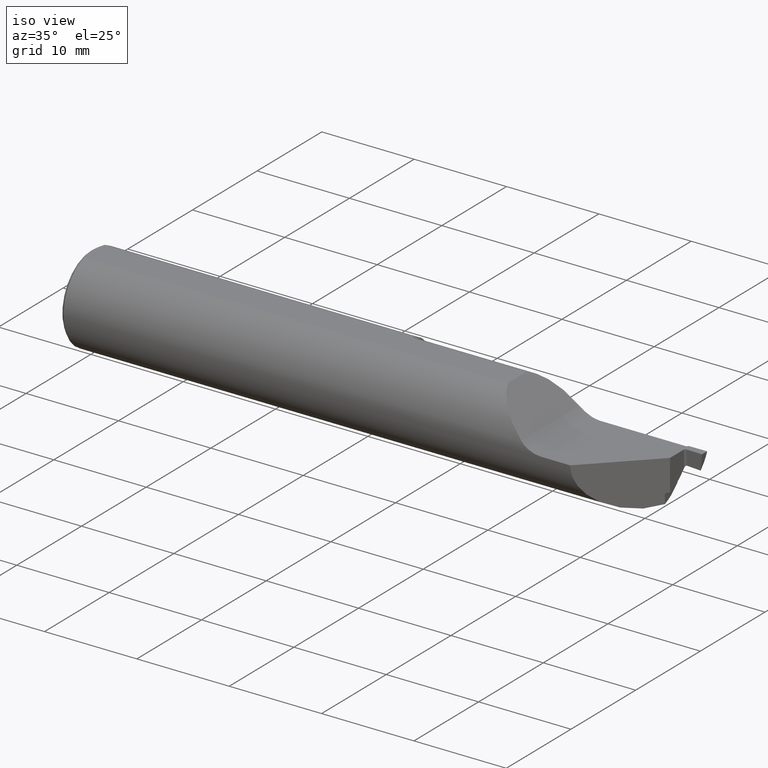
[diagram: clean part render]
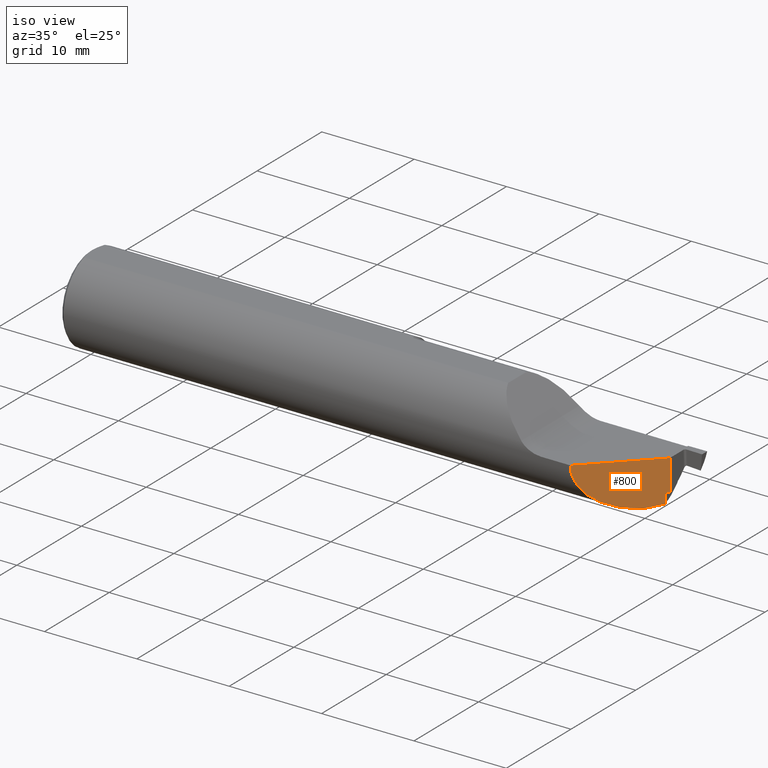
[diagram: same view with one face highlighted and labeled with its STEP entity id]
A machine part, iso view. The second image highlights one B-rep face of the part: STEP entity #800.
In plain terms, the highlighted planar face has unit normal (-0.7071, 0.7071, 0).
Its self-contained STEP definition (entity closure, byte-faithful):
#27 = EDGE_CURVE ( 'NONE', #167, #770, #256, .T. ) ;
#43 = VERTEX_POINT ( 'NONE', #600 ) ;
#73 = CARTESIAN_POINT ( 'NONE',  ( 2.425000000000000266, 0.06265000000000001124, 0.000000000000000000 ) ) ;
#81 = CARTESIAN_POINT ( 'NONE',  ( 2.376537322261709662, 0.01418732226170915482, -0.1864309973068664084 ) ) ;
#94 = ORIENTED_EDGE ( 'NONE', *, *, #509, .F. ) ;
#97 = DIRECTION ( 'NONE',  ( -0.7071067811865483499, -0.7071067811865465735, 0.000000000000000000 ) ) ;
#109 = CARTESIAN_POINT ( 'NONE',  ( 2.425000000000000266, 0.06265000000000001124, 0.000000000000000000 ) ) ;
#117 = PLANE ( 'NONE',  #733 ) ;
#131 = CARTESIAN_POINT ( 'NONE',  ( 2.425000000000000266, 0.06265000000000001124, -0.1873499999999999888 ) ) ;
#142 = VERTEX_POINT ( 'NONE', #411 ) ;
#159 = CARTESIAN_POINT ( 'NONE',  ( 2.416116090373312097, 0.05376609037331224472, -0.1342873896218227669 ) ) ;
#167 = VERTEX_POINT ( 'NONE', #677 ) ;
#194 =( BOUNDED_CURVE ( )  B_SPLINE_CURVE ( 3, ( #377, #381, #792, #739 ),
 .UNSPECIFIED., .F., .T. ) 
 B_SPLINE_CURVE_WITH_KNOTS ( ( 4, 4 ),
 ( 4.736077221231925094, 6.283185307179586232 ),
 .UNSPECIFIED. ) 
 CURVE ( )  GEOMETRIC_REPRESENTATION_ITEM ( )  RATIONAL_B_SPLINE_CURVE ( ( 1.000000000000000000, 0.8102880308174518209, 0.8102880308174518209, 1.000000000000000000 ) ) 
 REPRESENTATION_ITEM ( '' )  );
#204 = CARTESIAN_POINT ( 'NONE',  ( 2.357912423116064193, -0.004437576883935920487, -0.1872974383471407711 ) ) ;
#211 = VECTOR ( 'NONE', #690, 39.37007874015748143 ) ;
#244 = EDGE_CURVE ( 'NONE', #435, #289, #569, .T. ) ;
#256 =( BOUNDED_CURVE ( )  B_SPLINE_CURVE ( 3, ( #762, #825, #895, #548 ),
 .UNSPECIFIED., .F., .F. ) 
 B_SPLINE_CURVE_WITH_KNOTS ( ( 4, 4 ),
 ( 1.833971977229343020, 1.879038394447086535 ),
 .UNSPECIFIED. ) 
 CURVE ( )  GEOMETRIC_REPRESENTATION_ITEM ( )  RATIONAL_B_SPLINE_CURVE ( ( 1.000000000000000000, 0.9998307586644052947, 0.9998307586644052947, 1.000000000000000000 ) ) 
 REPRESENTATION_ITEM ( '' )  );
#288 = CARTESIAN_POINT ( 'NONE',  ( 2.413159311148727060, 0.05080931114872633964, -0.1371118278191037765 ) ) ;
#289 = VERTEX_POINT ( 'NONE', #622 ) ;
#298 = ORIENTED_EDGE ( 'NONE', *, *, #830, .F. ) ;
#308 = EDGE_CURVE ( 'NONE', #770, #402, #354, .T. ) ;
#341 = CARTESIAN_POINT ( 'NONE',  ( 2.415004202274817047, 0.05265420227481731191, -0.1349895646537199456 ) ) ;
#354 = LINE ( 'NONE', #131, #581 ) ;
#362 = LINE ( 'NONE', #561, #211 ) ;
#370 = EDGE_CURVE ( 'NONE', #43, #167, #616, .T. ) ;
#377 = CARTESIAN_POINT ( 'NONE',  ( 2.357912423116064193, -0.004437576883935920487, -0.1872974383471407711 ) ) ;
#381 = CARTESIAN_POINT ( 'NONE',  ( 2.250245845164273728, -0.1121041548357255835, -0.1847465293667054365 ) ) ;
#387 = ORIENTED_EDGE ( 'NONE', *, *, #27, .T. ) ;
#393 = CARTESIAN_POINT ( 'NONE',  ( 2.425000000000000266, 0.06265000000000001124, -0.1873499999999999888 ) ) ;
#395 = ORIENTED_EDGE ( 'NONE', *, *, #308, .T. ) ;
#402 = VERTEX_POINT ( 'NONE', #73 ) ;
#411 = CARTESIAN_POINT ( 'NONE',  ( 2.174999999999999822, -0.1873499999999999888, 0.000000000000000000 ) ) ;
#421 = CARTESIAN_POINT ( 'NONE',  ( 2.412383164751053855, 0.05003316475105366867, -0.1386217677844878426 ) ) ;
#423 = CARTESIAN_POINT ( 'NONE',  ( 2.394828643948621494, 0.03247864394862154391, -0.1828164241359915843 ) ) ;
#435 = VERTEX_POINT ( 'NONE', #487 ) ;
#452 = VECTOR ( 'NONE', #97, 39.37007874015748854 ) ;
#454 = FACE_OUTER_BOUND ( 'NONE', #533, .T. ) ;
#487 = CARTESIAN_POINT ( 'NONE',  ( 2.412383164751053855, 0.05003316475105366173, -0.1765334003688314723 ) ) ;
#509 = EDGE_CURVE ( 'NONE', #43, #435, #362, .T. ) ;
#513 = ORIENTED_EDGE ( 'NONE', *, *, #897, .T. ) ;
#517 = LINE ( 'NONE', #109, #452 ) ;
#533 = EDGE_LOOP ( 'NONE', ( #835, #94, #632, #387, #395, #513, #298 ) ) ;
#548 = CARTESIAN_POINT ( 'NONE',  ( 2.425000000000000266, 0.06265000000000001124, -0.1317519648452356862 ) ) ;
#557 = CARTESIAN_POINT ( 'NONE',  ( 2.412383164751053855, 0.05003316475105366173, -0.1765334003688314723 ) ) ;
#561 = CARTESIAN_POINT ( 'NONE',  ( 2.412383164751053855, 0.05003316475105366173, 0.03500000000000000333 ) ) ;
#569 =( BOUNDED_CURVE ( )  B_SPLINE_CURVE ( 3, ( #557, #423, #81, #204 ),
 .UNSPECIFIED., .F., .T. ) 
 B_SPLINE_CURVE_WITH_KNOTS ( ( 4, 4 ),
 ( 4.368680539687068709, 4.665901920041577000 ),
 .UNSPECIFIED. ) 
 CURVE ( )  GEOMETRIC_REPRESENTATION_ITEM ( )  RATIONAL_B_SPLINE_CURVE ( ( 1.000000000000000000, 0.9926518263205222903, 0.9926518263205222903, 1.000000000000000000 ) ) 
 REPRESENTATION_ITEM ( '' )  );
#581 = VECTOR ( 'NONE', #766, 39.37007874015748143 ) ;
#600 = CARTESIAN_POINT ( 'NONE',  ( 2.412383164751053855, 0.05003316475105366173, -0.1403388567413907662 ) ) ;
#607 = DIRECTION ( 'NONE',  ( -0.7071067811865466846, 0.7071067811865484609, 0.000000000000000000 ) ) ;
#616 = B_SPLINE_CURVE_WITH_KNOTS ( 'NONE', 3,
 ( #643, #421, #288, #341, #159, #703 ),
 .UNSPECIFIED., .F., .F.,
 ( 4, 2, 4 ),
 ( 0.000000000000000000, 0.0001283981737703043249, 0.0002567963475406086498 ),
 .UNSPECIFIED. ) ;
#622 = CARTESIAN_POINT ( 'NONE',  ( 2.357912423116064193, -0.004437576883935920487, -0.1872974383471407711 ) ) ;
#632 = ORIENTED_EDGE ( 'NONE', *, *, #370, .T. ) ;
#643 = CARTESIAN_POINT ( 'NONE',  ( 2.412383164751053855, 0.05003316475105366173, -0.1403388567413907662 ) ) ;
#677 = CARTESIAN_POINT ( 'NONE',  ( 2.417298135261886749, 0.05494813526188662561, -0.1339745240121903436 ) ) ;
#684 = CARTESIAN_POINT ( 'NONE',  ( 2.425000000000000266, 0.06265000000000001124, -0.1317519648452356862 ) ) ;
#690 = DIRECTION ( 'NONE',  ( 0.000000000000000000, 0.000000000000000000, -1.000000000000000000 ) ) ;
#703 = CARTESIAN_POINT ( 'NONE',  ( 2.417298135261886749, 0.05494813526188662561, -0.1339745240121903436 ) ) ;
#733 = AXIS2_PLACEMENT_3D ( 'NONE', #393, #607, #878 ) ;
#739 = CARTESIAN_POINT ( 'NONE',  ( 2.174999999999999822, -0.1873499999999999888, 0.000000000000000000 ) ) ;
#762 = CARTESIAN_POINT ( 'NONE',  ( 2.417298135261886749, 0.05494813526188662561, -0.1339745240121903436 ) ) ;
#766 = DIRECTION ( 'NONE',  ( -0.000000000000000000, -0.000000000000000000, 1.000000000000000000 ) ) ;
#770 = VERTEX_POINT ( 'NONE', #684 ) ;
#792 = CARTESIAN_POINT ( 'NONE',  ( 2.174999999999999822, -0.1873500000000000165, -0.1076967926378278456 ) ) ;
#800 = ADVANCED_FACE ( 'NONE', ( #454 ), #117, .F. ) ;
#825 = CARTESIAN_POINT ( 'NONE',  ( 2.419882200616152890, 0.05753220061615314102, -0.1332905692908363526 ) ) ;
#830 = EDGE_CURVE ( 'NONE', #289, #142, #194, .T. ) ;
#835 = ORIENTED_EDGE ( 'NONE', *, *, #244, .F. ) ;
#878 = DIRECTION ( 'NONE',  ( -0.7071067811865483499, -0.7071067811865465735, 0.000000000000000000 ) ) ;
#895 = CARTESIAN_POINT ( 'NONE',  ( 2.422449923427028917, 0.06009992342702890483, -0.1325495908310005688 ) ) ;
#897 = EDGE_CURVE ( 'NONE', #402, #142, #517, .T. ) ;